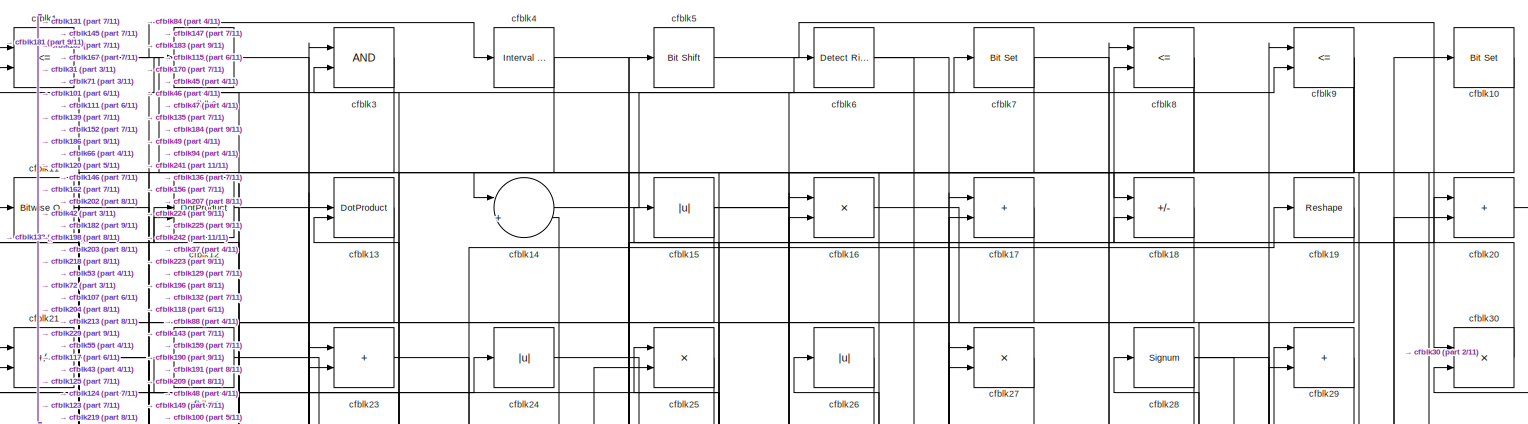
[diagram: root canvas - part 1/11, full width, top band]
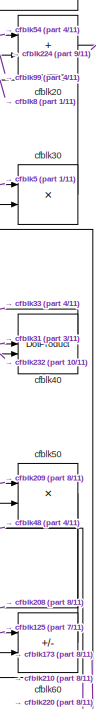
[diagram: root canvas - part 2/11, top right region]
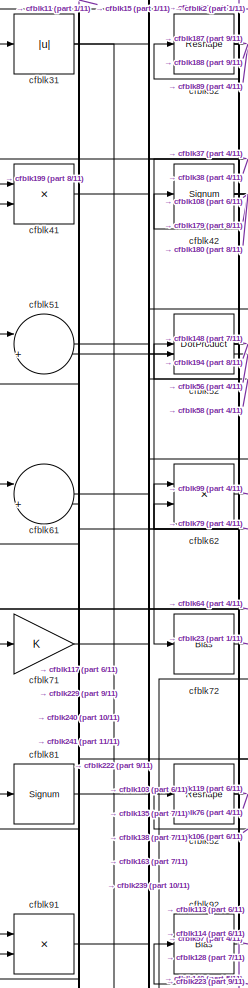
[diagram: root canvas - part 3/11, top left region]
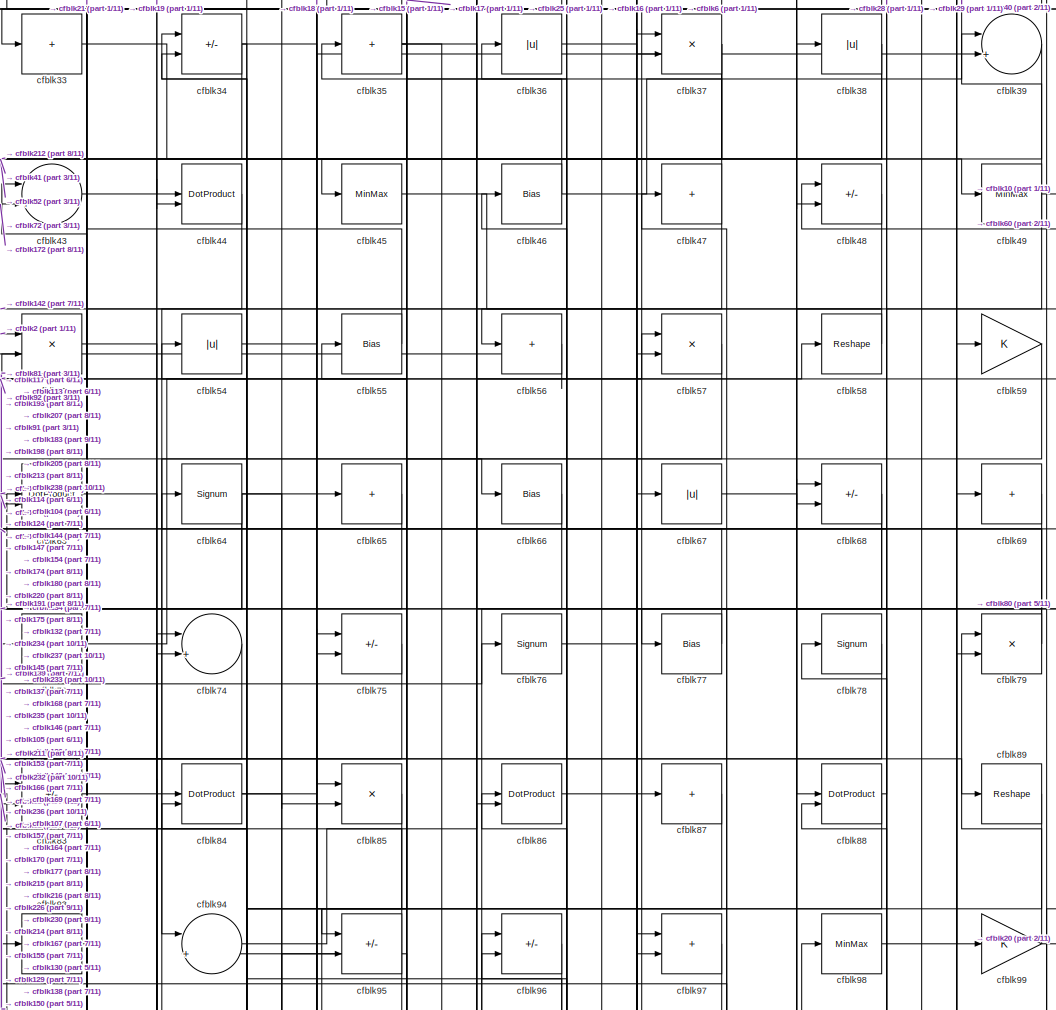
[diagram: root canvas - part 4/11, top center region]
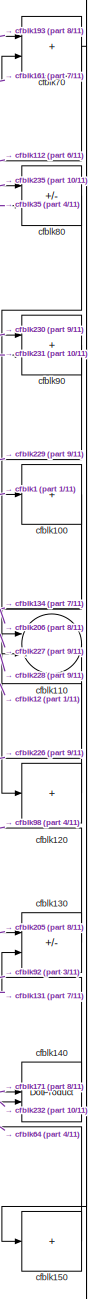
[diagram: root canvas - part 5/11, middle right region]
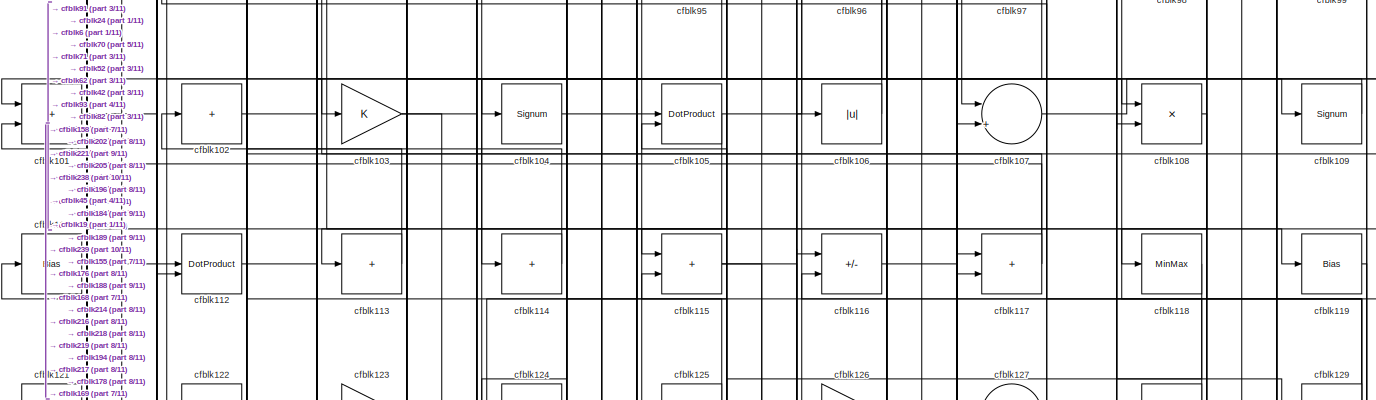
[diagram: root canvas - part 6/11, full width, middle band]
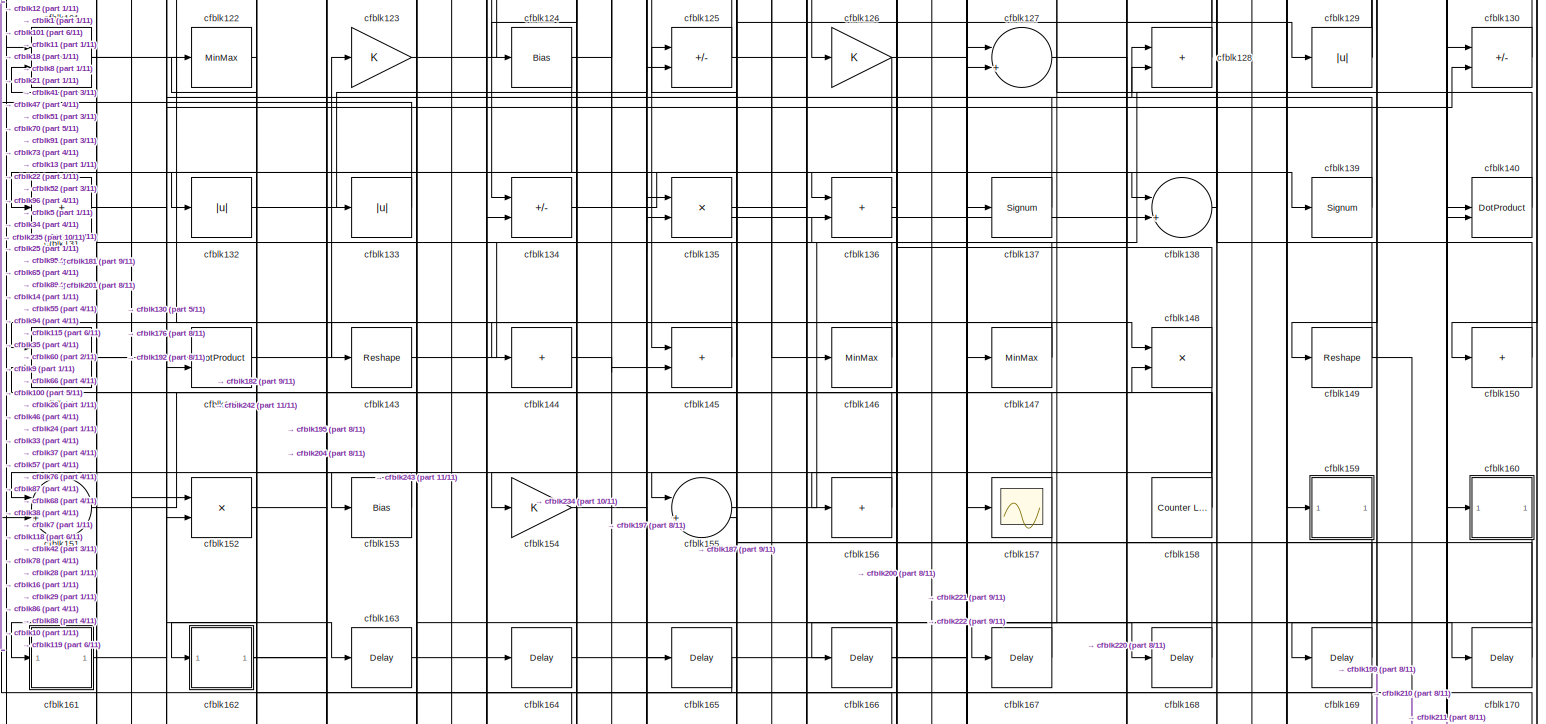
[diagram: root canvas - part 7/11, full width, middle band]
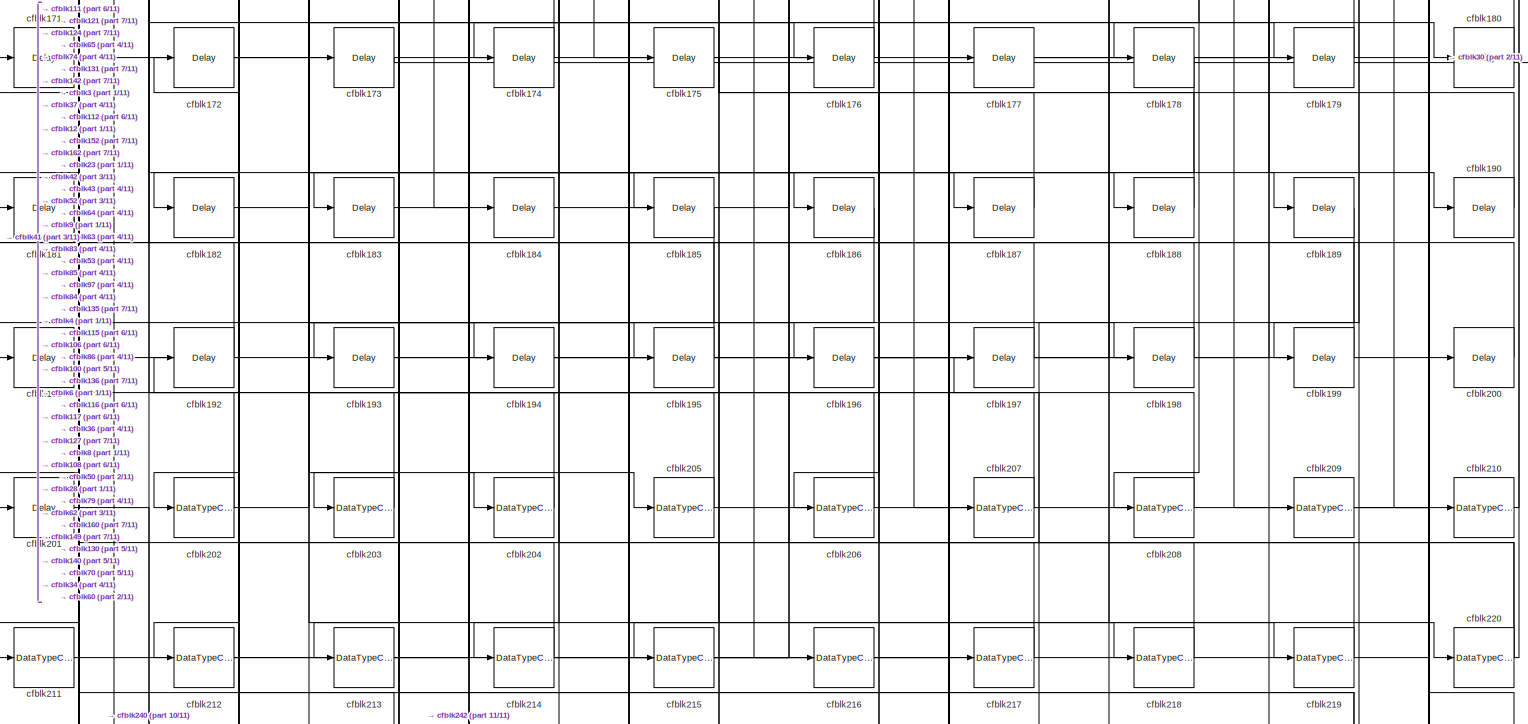
[diagram: root canvas - part 8/11, full width, bottom band]
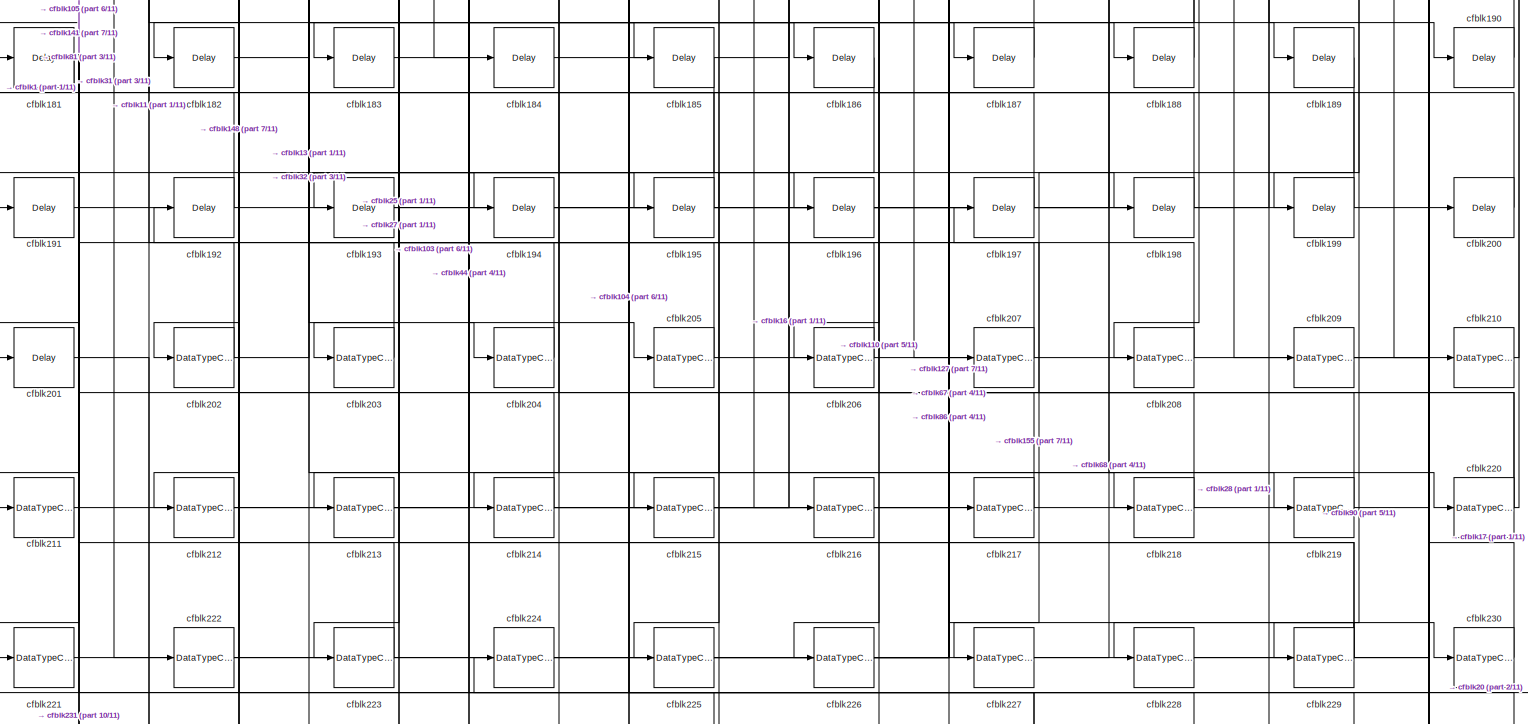
[diagram: root canvas - part 9/11, full width, bottom band]
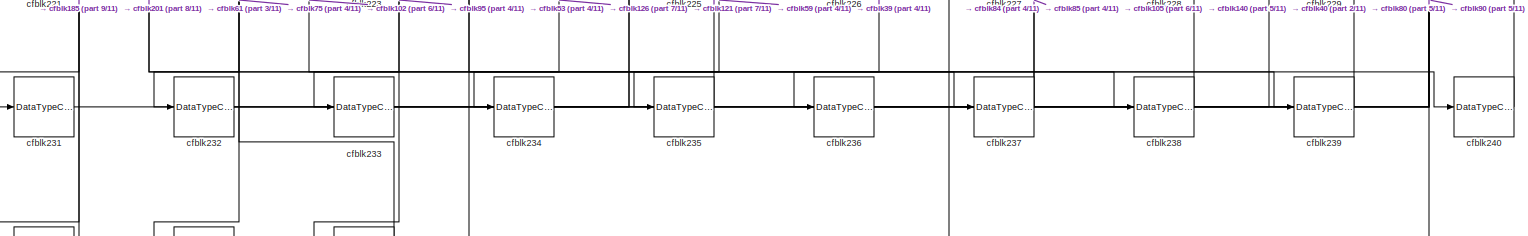
[diagram: root canvas - part 10/11, full width, bottom band]
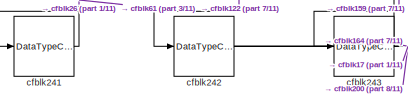
[diagram: root canvas - part 11/11, bottom left region]
MODEL slx_226586315a16
KIND model
CONFIG AbsTol = auto
CONFIG EnableMultiTasking = off
CONFIG FixedStep = auto
CONFIG MaxStep = auto
CONFIG MinStep = auto
CONFIG RelTol = 1e-3
CONFIG SampleTimeConstraint = Unconstrained
CONFIG SolverName = VariableStepAuto
CONFIG StartTime = 0.0
CONFIG StopTime = 10.0
BLOCK [RelationalOperator] cfblk1
  InputSameDT = off
  Operator = <=
  OutDataTypeStr = boolean
BLOCK [Reference] cfblk10  REF=simulink/Logic and Bit
Operations/Bit Set
  LibrarySourceBlock = hdlsllib/Logic and Bit\nOperations/Bit Set
  SourceBlock = simulink/Logic and Bit\nOperations/Bit Set
  SourceType = Bit Set
BLOCK [Sum] cfblk100
  IconShape = rectangular
  Inputs = +
BLOCK [Sum] cfblk101
  IconShape = rectangular
BLOCK [Sum] cfblk102
  IconShape = rectangular
  Inputs = +
BLOCK [Gain] cfblk103
BLOCK [Signum] cfblk104
BLOCK [DotProduct] cfblk105
  OutDataTypeStr = Inherit: Inherit via internal rule
BLOCK [Abs] cfblk106
  SaturateOnIntegerOverflow = off
BLOCK [Sum] cfblk107
  Inputs = |++
BLOCK [Product] cfblk108
  Inputs = */
  RndMeth = Zero
  SaturateOnIntegerOverflow = on
BLOCK [Signum] cfblk109
BLOCK [Reference] cfblk11  REF=simulink/Logic and Bit
Operations/Bitwise
Operator
  LibrarySourceBlock = hdlsllib/Logic and Bit\nOperations/Bitwise\nOperator
  SourceBlock = simulink/Logic and Bit\nOperations/Bitwise\nOperator
  SourceType = Bitwise Operator
BLOCK [Sum] cfblk110
  Inputs = |++
BLOCK [Bias] cfblk111
  Bias = 0.0
  SaturateOnIntegerOverflow = off
BLOCK [DotProduct] cfblk112
  OutDataTypeStr = Inherit: Inherit via internal rule
BLOCK [Sum] cfblk113
  IconShape = rectangular
  Inputs = +
BLOCK [Sum] cfblk114
  IconShape = rectangular
  Inputs = +
BLOCK [Sum] cfblk115
  IconShape = rectangular
BLOCK [Sum] cfblk116
  IconShape = rectangular
  Inputs = +-
BLOCK [Sum] cfblk117
  IconShape = rectangular
BLOCK [MinMax] cfblk118
BLOCK [Bias] cfblk119
  Bias = 0.0
  SaturateOnIntegerOverflow = off
BLOCK [DotProduct] cfblk12
  OutDataTypeStr = Inherit: Inherit via internal rule
BLOCK [Sum] cfblk120
  IconShape = rectangular
  Inputs = +
BLOCK [Product] cfblk121
  Inputs = */
  RndMeth = Zero
  SaturateOnIntegerOverflow = on
BLOCK [MinMax] cfblk122
BLOCK [Gain] cfblk123
BLOCK [Bias] cfblk124
  Bias = 0.0
  SaturateOnIntegerOverflow = off
BLOCK [Sum] cfblk125
  IconShape = rectangular
  Inputs = +-
BLOCK [Gain] cfblk126
BLOCK [Sum] cfblk127
  Inputs = |++
BLOCK [Sum] cfblk128
  IconShape = rectangular
BLOCK [Abs] cfblk129
  SaturateOnIntegerOverflow = off
BLOCK [DotProduct] cfblk13
  OutDataTypeStr = Inherit: Inherit via internal rule
BLOCK [Sum] cfblk130
  IconShape = rectangular
  Inputs = +-
BLOCK [Sum] cfblk131
  IconShape = rectangular
  Inputs = +
BLOCK [Abs] cfblk132
  SaturateOnIntegerOverflow = off
BLOCK [Abs] cfblk133
  SaturateOnIntegerOverflow = off
BLOCK [Sum] cfblk134
  IconShape = rectangular
  Inputs = +-
BLOCK [Product] cfblk135
  Inputs = */
  RndMeth = Zero
  SaturateOnIntegerOverflow = on
BLOCK [Sum] cfblk136
  IconShape = rectangular
BLOCK [Signum] cfblk137
BLOCK [Sum] cfblk138
  Inputs = |++
BLOCK [Signum] cfblk139
BLOCK [Sum] cfblk14
  Inputs = |++
BLOCK [DotProduct] cfblk140
  OutDataTypeStr = Inherit: Inherit via internal rule
BLOCK [Sum] cfblk141
  IconShape = rectangular
BLOCK [DotProduct] cfblk142
  OutDataTypeStr = Inherit: Inherit via internal rule
BLOCK [Reshape] cfblk143
BLOCK [Sum] cfblk144
  IconShape = rectangular
  Inputs = +
BLOCK [Sum] cfblk145
  IconShape = rectangular
BLOCK [MinMax] cfblk146
BLOCK [MinMax] cfblk147
BLOCK [Product] cfblk148
  Inputs = */
  RndMeth = Zero
  SaturateOnIntegerOverflow = on
BLOCK [Reshape] cfblk149
BLOCK [Abs] cfblk15
  SaturateOnIntegerOverflow = off
BLOCK [Sum] cfblk150
  IconShape = rectangular
  Inputs = +
BLOCK [Sum] cfblk151
  Inputs = |++
BLOCK [Product] cfblk152
  Inputs = */
  RndMeth = Zero
  SaturateOnIntegerOverflow = on
BLOCK [Bias] cfblk153
  Bias = 0.0
  SaturateOnIntegerOverflow = off
BLOCK [Gain] cfblk154
BLOCK [Sum] cfblk155
  Inputs = |++
BLOCK [Sum] cfblk156
  IconShape = rectangular
  Inputs = +
BLOCK [Scope] cfblk157
  Floating = off
  NumInputPorts = 1
  ScopeSpecificationString = Simulink.scopes.TimeScopeBlockCfg('CurrentConfiguration', extmgr.ConfigurationSet(extmgr.Configuration('Core','General UI',true),extmgr.Configuration('Core','Source UI',true),extmgr.Configuration('Sources','WiredSimulink',true,'DataLoggingVariableName','ScopeData2','DataLoggingSaveFormat','Array','DataLoggingLimitDataPoints',true,'DataLoggingDecimation','1'),extmgr.Configuration('Visuals','Time Do...<+868ch>
BLOCK [Reference] cfblk158  REF=hdlsllib/Sources/Counter
Limited
  SourceBlock = hdlsllib/Sources/Counter\nLimited
  SourceType = Counter Limited
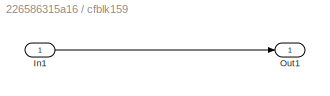
BLOCK [SubSystem] cfblk159
  LibrarySourceBlock = hdlsllib/Ports &\nSubsystems/Subsystem
BLOCK [Inport] cfblk159/In1
BLOCK [Outport] cfblk159/Out1
BLOCK [Product] cfblk16
  Inputs = */
  RndMeth = Zero
  SaturateOnIntegerOverflow = on
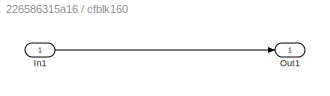
BLOCK [SubSystem] cfblk160
  LibrarySourceBlock = hdlsllib/Ports &\nSubsystems/Subsystem
BLOCK [Inport] cfblk160/In1
BLOCK [Outport] cfblk160/Out1
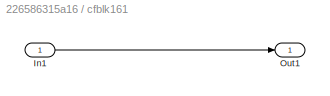
BLOCK [SubSystem] cfblk161
  LibrarySourceBlock = hdlsllib/Ports &\nSubsystems/Subsystem
BLOCK [Inport] cfblk161/In1
BLOCK [Outport] cfblk161/Out1
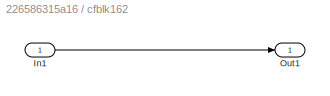
BLOCK [SubSystem] cfblk162
  LibrarySourceBlock = hdlsllib/Ports &\nSubsystems/Subsystem
BLOCK [Inport] cfblk162/In1
BLOCK [Outport] cfblk162/Out1
BLOCK [Delay] cfblk163
  InputPortMap = u0
  SampleTime = 1
BLOCK [Delay] cfblk164
  InputPortMap = u0
  SampleTime = 1
BLOCK [Delay] cfblk165
  InputPortMap = u0
  SampleTime = 1
BLOCK [Delay] cfblk166
  InputPortMap = u0
  SampleTime = 1
BLOCK [Delay] cfblk167
  InputPortMap = u0
  SampleTime = 1
BLOCK [Delay] cfblk168
  InputPortMap = u0
  SampleTime = 1
BLOCK [Delay] cfblk169
  InputPortMap = u0
  SampleTime = 1
BLOCK [Sum] cfblk17
  IconShape = rectangular
BLOCK [Delay] cfblk170
  InputPortMap = u0
  SampleTime = 1
BLOCK [Delay] cfblk171
  InputPortMap = u0
  SampleTime = 1
BLOCK [Delay] cfblk172
  InputPortMap = u0
  SampleTime = 1
BLOCK [Delay] cfblk173
  InputPortMap = u0
  SampleTime = 1
BLOCK [Delay] cfblk174
  InputPortMap = u0
  SampleTime = 1
BLOCK [Delay] cfblk175
  InputPortMap = u0
  SampleTime = 1
BLOCK [Delay] cfblk176
  InputPortMap = u0
  SampleTime = 1
BLOCK [Delay] cfblk177
  InputPortMap = u0
  SampleTime = 1
BLOCK [Delay] cfblk178
  InputPortMap = u0
  SampleTime = 1
BLOCK [Delay] cfblk179
  InputPortMap = u0
  SampleTime = 1
BLOCK [Sum] cfblk18
  IconShape = rectangular
  Inputs = +-
BLOCK [Delay] cfblk180
  InputPortMap = u0
  SampleTime = 1
BLOCK [Delay] cfblk181
  InputPortMap = u0
  SampleTime = 1
BLOCK [Delay] cfblk182
  InputPortMap = u0
  SampleTime = 1
BLOCK [Delay] cfblk183
  InputPortMap = u0
  SampleTime = 1
BLOCK [Delay] cfblk184
  InputPortMap = u0
  SampleTime = 1
BLOCK [Delay] cfblk185
  InputPortMap = u0
  SampleTime = 1
BLOCK [Delay] cfblk186
  InputPortMap = u0
  SampleTime = 1
BLOCK [Delay] cfblk187
  InputPortMap = u0
  SampleTime = 1
BLOCK [Delay] cfblk188
  InputPortMap = u0
  SampleTime = 1
BLOCK [Delay] cfblk189
  InputPortMap = u0
  SampleTime = 1
BLOCK [Reshape] cfblk19
BLOCK [Delay] cfblk190
  InputPortMap = u0
  SampleTime = 1
BLOCK [Delay] cfblk191
  InputPortMap = u0
  SampleTime = 1
BLOCK [Delay] cfblk192
  InputPortMap = u0
  SampleTime = 1
BLOCK [Delay] cfblk193
  InputPortMap = u0
  SampleTime = 1
BLOCK [Delay] cfblk194
  InputPortMap = u0
  SampleTime = 1
BLOCK [Delay] cfblk195
  InputPortMap = u0
  SampleTime = 1
BLOCK [Delay] cfblk196
  InputPortMap = u0
  SampleTime = 1
BLOCK [Delay] cfblk197
  InputPortMap = u0
  SampleTime = 1
BLOCK [Delay] cfblk198
  InputPortMap = u0
  SampleTime = 1
BLOCK [Delay] cfblk199
  InputPortMap = u0
  SampleTime = 1
BLOCK [Reference] cfblk2  REF=hdlsllib/Logic and Bit
Operations/Bit Slice
  SourceBlock = hdlsllib/Logic and Bit\nOperations/Bit Slice
  SourceType = Bit Slice
BLOCK [Sum] cfblk20
  IconShape = rectangular
BLOCK [Delay] cfblk200
  InputPortMap = u0
  SampleTime = 1
BLOCK [Delay] cfblk201
  InputPortMap = u0
  SampleTime = 1
BLOCK [DataTypeConversion] cfblk202
  RndMeth = Floor
  SaturateOnIntegerOverflow = off
BLOCK [DataTypeConversion] cfblk203
  OutDataTypeStr = uint8
  RndMeth = Floor
  SaturateOnIntegerOverflow = off
BLOCK [DataTypeConversion] cfblk204
  OutDataTypeStr = uint8
  RndMeth = Floor
  SaturateOnIntegerOverflow = off
BLOCK [DataTypeConversion] cfblk205
  RndMeth = Floor
  SaturateOnIntegerOverflow = off
BLOCK [DataTypeConversion] cfblk206
  OutDataTypeStr = uint8
  RndMeth = Floor
  SaturateOnIntegerOverflow = off
BLOCK [DataTypeConversion] cfblk207
  OutDataTypeStr = uint8
  RndMeth = Floor
  SaturateOnIntegerOverflow = off
BLOCK [DataTypeConversion] cfblk208
  OutDataTypeStr = uint8
  RndMeth = Floor
  SaturateOnIntegerOverflow = off
BLOCK [DataTypeConversion] cfblk209
  OutDataTypeStr = uint8
  RndMeth = Floor
  SaturateOnIntegerOverflow = off
BLOCK [Sum] cfblk21
  IconShape = rectangular
  Inputs = +-
BLOCK [DataTypeConversion] cfblk210
  OutDataTypeStr = uint8
  RndMeth = Floor
  SaturateOnIntegerOverflow = off
BLOCK [DataTypeConversion] cfblk211
  OutDataTypeStr = uint8
  RndMeth = Floor
  SaturateOnIntegerOverflow = off
BLOCK [DataTypeConversion] cfblk212
  OutDataTypeStr = uint8
  RndMeth = Floor
  SaturateOnIntegerOverflow = off
BLOCK [DataTypeConversion] cfblk213
  OutDataTypeStr = uint8
  RndMeth = Floor
  SaturateOnIntegerOverflow = off
BLOCK [DataTypeConversion] cfblk214
  RndMeth = Floor
  SaturateOnIntegerOverflow = off
BLOCK [DataTypeConversion] cfblk215
  OutDataTypeStr = uint8
  RndMeth = Floor
  SaturateOnIntegerOverflow = off
BLOCK [DataTypeConversion] cfblk216
  OutDataTypeStr = uint8
  RndMeth = Floor
  SaturateOnIntegerOverflow = off
BLOCK [DataTypeConversion] cfblk217
  OutDataTypeStr = uint8
  RndMeth = Floor
  SaturateOnIntegerOverflow = off
BLOCK [DataTypeConversion] cfblk218
  OutDataTypeStr = uint8
  RndMeth = Floor
  SaturateOnIntegerOverflow = off
BLOCK [DataTypeConversion] cfblk219
  OutDataTypeStr = uint8
  RndMeth = Floor
  SaturateOnIntegerOverflow = off
BLOCK [Bias] cfblk22
  Bias = 0.0
  SaturateOnIntegerOverflow = off
BLOCK [DataTypeConversion] cfblk220
  RndMeth = Floor
  SaturateOnIntegerOverflow = off
BLOCK [DataTypeConversion] cfblk221
  OutDataTypeStr = uint8
  RndMeth = Floor
  SaturateOnIntegerOverflow = off
BLOCK [DataTypeConversion] cfblk222
  OutDataTypeStr = uint8
  RndMeth = Floor
  SaturateOnIntegerOverflow = off
BLOCK [DataTypeConversion] cfblk223
  OutDataTypeStr = uint8
  RndMeth = Floor
  SaturateOnIntegerOverflow = off
BLOCK [DataTypeConversion] cfblk224
  OutDataTypeStr = uint8
  RndMeth = Floor
  SaturateOnIntegerOverflow = off
BLOCK [DataTypeConversion] cfblk225
  OutDataTypeStr = uint8
  RndMeth = Floor
  SaturateOnIntegerOverflow = off
BLOCK [DataTypeConversion] cfblk226
  RndMeth = Floor
  SaturateOnIntegerOverflow = off
BLOCK [DataTypeConversion] cfblk227
  OutDataTypeStr = uint8
  RndMeth = Floor
  SaturateOnIntegerOverflow = off
BLOCK [DataTypeConversion] cfblk228
  OutDataTypeStr = uint8
  RndMeth = Floor
  SaturateOnIntegerOverflow = off
BLOCK [DataTypeConversion] cfblk229
  RndMeth = Floor
  SaturateOnIntegerOverflow = off
BLOCK [Sum] cfblk23
  IconShape = rectangular
BLOCK [DataTypeConversion] cfblk230
  OutDataTypeStr = uint8
  RndMeth = Floor
  SaturateOnIntegerOverflow = off
BLOCK [DataTypeConversion] cfblk231
  OutDataTypeStr = uint8
  RndMeth = Floor
  SaturateOnIntegerOverflow = off
BLOCK [DataTypeConversion] cfblk232
  RndMeth = Floor
  SaturateOnIntegerOverflow = off
BLOCK [DataTypeConversion] cfblk233
  OutDataTypeStr = uint8
  RndMeth = Floor
  SaturateOnIntegerOverflow = off
BLOCK [DataTypeConversion] cfblk234
  OutDataTypeStr = uint8
  RndMeth = Floor
  SaturateOnIntegerOverflow = off
BLOCK [DataTypeConversion] cfblk235
  RndMeth = Floor
  SaturateOnIntegerOverflow = off
BLOCK [DataTypeConversion] cfblk236
  OutDataTypeStr = uint8
  RndMeth = Floor
  SaturateOnIntegerOverflow = off
BLOCK [DataTypeConversion] cfblk237
  RndMeth = Floor
  SaturateOnIntegerOverflow = off
BLOCK [DataTypeConversion] cfblk238
  OutDataTypeStr = uint8
  RndMeth = Floor
  SaturateOnIntegerOverflow = off
BLOCK [DataTypeConversion] cfblk239
  OutDataTypeStr = uint8
  RndMeth = Floor
  SaturateOnIntegerOverflow = off
BLOCK [Abs] cfblk24
  SaturateOnIntegerOverflow = off
BLOCK [DataTypeConversion] cfblk240
  OutDataTypeStr = uint8
  RndMeth = Floor
  SaturateOnIntegerOverflow = off
BLOCK [DataTypeConversion] cfblk241
  OutDataTypeStr = uint8
  RndMeth = Floor
  SaturateOnIntegerOverflow = off
BLOCK [DataTypeConversion] cfblk242
  RndMeth = Floor
  SaturateOnIntegerOverflow = off
BLOCK [DataTypeConversion] cfblk243
  OutDataTypeStr = uint8
  RndMeth = Floor
  SaturateOnIntegerOverflow = off
BLOCK [Product] cfblk25
  Inputs = */
  RndMeth = Zero
  SaturateOnIntegerOverflow = on
BLOCK [Abs] cfblk26
  SaturateOnIntegerOverflow = off
BLOCK [Product] cfblk27
  Inputs = */
  RndMeth = Zero
  SaturateOnIntegerOverflow = on
BLOCK [Signum] cfblk28
BLOCK [Sum] cfblk29
  IconShape = rectangular
BLOCK [Logic] cfblk3
  AllPortsSameDT = off
  OutDataTypeStr = boolean
BLOCK [Product] cfblk30
  Inputs = */
  RndMeth = Zero
  SaturateOnIntegerOverflow = on
BLOCK [Abs] cfblk31
  SaturateOnIntegerOverflow = off
BLOCK [Reshape] cfblk32
BLOCK [Sum] cfblk33
  IconShape = rectangular
  Inputs = +
BLOCK [Sum] cfblk34
  IconShape = rectangular
  Inputs = +-
BLOCK [Sum] cfblk35
  IconShape = rectangular
  Inputs = +
BLOCK [Abs] cfblk36
  SaturateOnIntegerOverflow = off
BLOCK [Product] cfblk37
  Inputs = */
  RndMeth = Zero
  SaturateOnIntegerOverflow = on
BLOCK [Abs] cfblk38
  SaturateOnIntegerOverflow = off
BLOCK [Sum] cfblk39
  Inputs = |++
BLOCK [Reference] cfblk4  REF=hdlsllib/Logic and Bit
Operations/Interval Test
  SourceBlock = hdlsllib/Logic and Bit\nOperations/Interval Test
  SourceType = Interval Test
BLOCK [DotProduct] cfblk40
  OutDataTypeStr = Inherit: Inherit via internal rule
BLOCK [Product] cfblk41
  Inputs = */
  RndMeth = Zero
  SaturateOnIntegerOverflow = on
BLOCK [Signum] cfblk42
BLOCK [Sum] cfblk43
  Inputs = |++
BLOCK [DotProduct] cfblk44
  OutDataTypeStr = Inherit: Inherit via internal rule
BLOCK [MinMax] cfblk45
BLOCK [Bias] cfblk46
  Bias = 0.0
  SaturateOnIntegerOverflow = off
BLOCK [Sum] cfblk47
  IconShape = rectangular
  Inputs = +
BLOCK [Sum] cfblk48
  IconShape = rectangular
  Inputs = +-
BLOCK [MinMax] cfblk49
BLOCK [Reference] cfblk5  REF=hdlsllib/Logic and Bit
Operations/Bit Shift
  SourceBlock = hdlsllib/Logic and Bit\nOperations/Bit Shift
  SourceType = Bit Shift
BLOCK [Product] cfblk50
  Inputs = */
  RndMeth = Zero
  SaturateOnIntegerOverflow = on
BLOCK [Sum] cfblk51
  Inputs = |++
BLOCK [DotProduct] cfblk52
  OutDataTypeStr = Inherit: Inherit via internal rule
BLOCK [Product] cfblk53
  Inputs = */
  RndMeth = Zero
  SaturateOnIntegerOverflow = on
BLOCK [Abs] cfblk54
  SaturateOnIntegerOverflow = off
BLOCK [Bias] cfblk55
  Bias = 0.0
  SaturateOnIntegerOverflow = off
BLOCK [Sum] cfblk56
  IconShape = rectangular
  Inputs = +
BLOCK [Product] cfblk57
  Inputs = */
  RndMeth = Zero
  SaturateOnIntegerOverflow = on
BLOCK [Reshape] cfblk58
BLOCK [Gain] cfblk59
BLOCK [Reference] cfblk6  REF=hdlsllib/Logic and Bit
Operations/Detect Rise
Positive
  SourceBlock = hdlsllib/Logic and Bit\nOperations/Detect Rise\nPositive
  SourceType = Detect Rise Positive
BLOCK [Sum] cfblk60
  IconShape = rectangular
  Inputs = +-
BLOCK [Sum] cfblk61
  Inputs = |++
BLOCK [Product] cfblk62
  Inputs = */
  RndMeth = Zero
  SaturateOnIntegerOverflow = on
BLOCK [DotProduct] cfblk63
  OutDataTypeStr = Inherit: Inherit via internal rule
BLOCK [Signum] cfblk64
BLOCK [Sum] cfblk65
  IconShape = rectangular
  Inputs = +
BLOCK [Bias] cfblk66
  Bias = 0.0
  SaturateOnIntegerOverflow = off
BLOCK [Abs] cfblk67
  SaturateOnIntegerOverflow = off
BLOCK [Sum] cfblk68
  IconShape = rectangular
  Inputs = +-
BLOCK [Sum] cfblk69
  IconShape = rectangular
  Inputs = +
BLOCK [Reference] cfblk7  REF=simulink/Logic and Bit
Operations/Bit Set
  LibrarySourceBlock = hdlsllib/Logic and Bit\nOperations/Bit Set
  SourceBlock = simulink/Logic and Bit\nOperations/Bit Set
  SourceType = Bit Set
BLOCK [Sum] cfblk70
  IconShape = rectangular
BLOCK [Gain] cfblk71
BLOCK [Bias] cfblk72
  Bias = 0.0
  SaturateOnIntegerOverflow = off
BLOCK [Sum] cfblk73
  IconShape = rectangular
  Inputs = +
BLOCK [Sum] cfblk74
  Inputs = |++
BLOCK [Sum] cfblk75
  IconShape = rectangular
  Inputs = +-
BLOCK [Signum] cfblk76
BLOCK [Bias] cfblk77
  Bias = 0.0
  SaturateOnIntegerOverflow = off
BLOCK [Signum] cfblk78
BLOCK [Product] cfblk79
  Inputs = */
  RndMeth = Zero
  SaturateOnIntegerOverflow = on
BLOCK [RelationalOperator] cfblk8
  InputSameDT = off
  Operator = <=
  OutDataTypeStr = boolean
BLOCK [Sum] cfblk80
  IconShape = rectangular
  Inputs = +-
BLOCK [Signum] cfblk81
BLOCK [Reshape] cfblk82
BLOCK [Sum] cfblk83
  IconShape = rectangular
  Inputs = +-
BLOCK [DotProduct] cfblk84
  OutDataTypeStr = Inherit: Inherit via internal rule
BLOCK [Product] cfblk85
  Inputs = */
  RndMeth = Zero
  SaturateOnIntegerOverflow = on
BLOCK [DotProduct] cfblk86
  OutDataTypeStr = Inherit: Inherit via internal rule
BLOCK [Sum] cfblk87
  IconShape = rectangular
  Inputs = +
BLOCK [DotProduct] cfblk88
  OutDataTypeStr = Inherit: Inherit via internal rule
BLOCK [Reshape] cfblk89
BLOCK [RelationalOperator] cfblk9
  InputSameDT = off
  Operator = <=
  OutDataTypeStr = boolean
BLOCK [Sum] cfblk90
  IconShape = rectangular
BLOCK [Product] cfblk91
  Inputs = */
  RndMeth = Zero
  SaturateOnIntegerOverflow = on
BLOCK [Bias] cfblk92
  Bias = 0.0
  SaturateOnIntegerOverflow = off
BLOCK [Sum] cfblk93
  IconShape = rectangular
  Inputs = +
BLOCK [Sum] cfblk94
  Inputs = |++
BLOCK [Sum] cfblk95
  IconShape = rectangular
  Inputs = +-
BLOCK [Sum] cfblk96
  IconShape = rectangular
  Inputs = +-
BLOCK [Sum] cfblk97
  IconShape = rectangular
BLOCK [MinMax] cfblk98
BLOCK [Gain] cfblk99
NET cfblk100:1 -> cfblk134:1, cfblk206:1
LINE cfblk101:1 -> cfblk6:1
LINE cfblk102:1 -> cfblk237:1
NET cfblk103:1 -> cfblk184:1, cfblk185:1
LINE cfblk104:1 -> cfblk189:1
NET cfblk105:1 -> cfblk221:1, cfblk96:1
LINE cfblk106:1 -> cfblk82:1
LINE cfblk107:1 -> cfblk109:1
LINE cfblk108:1 -> cfblk178:1
LINE cfblk109:1 -> cfblk101:1
LINE cfblk10:1 -> cfblk149:1
LINE cfblk110:1 -> cfblk226:1
LINE cfblk111:1 -> cfblk24:1
LINE cfblk112:1 -> cfblk196:1
LINE cfblk113:1 -> cfblk52:1
LINE cfblk114:1 -> cfblk62:1
NET cfblk115:1 -> cfblk168:1, cfblk216:1
LINE cfblk116:1 -> cfblk217:1
NET cfblk117:1 -> cfblk91:1, cfblk93:1
LINE cfblk118:1 -> cfblk155:1
LINE cfblk119:1 -> cfblk169:1
NET cfblk11:1 -> cfblk186:1, cfblk71:1
LINE cfblk120:1 -> cfblk12:2
NET cfblk121:1 -> cfblk143:1, cfblk152:1
LINE cfblk122:1 -> cfblk242:1
LINE cfblk123:1 -> cfblk5:1
NET cfblk124:1 -> cfblk201:1, cfblk25:2
NET cfblk125:1 -> cfblk14:2, cfblk60:1
NET cfblk126:1 -> cfblk234:1, cfblk87:1
LINE cfblk127:1 -> cfblk220:1
LINE cfblk128:1 -> cfblk42:1
NET cfblk129:1 -> cfblk47:1, cfblk86:1, cfblk88:2
LINE cfblk12:1 -> cfblk218:1
LINE cfblk130:1 -> cfblk98:1
NET cfblk131:1 -> cfblk130:2, cfblk176:1
LINE cfblk132:1 -> cfblk65:1
LINE cfblk133:1 -> cfblk12:1
NET cfblk134:1 -> cfblk136:1, cfblk95:2
LINE cfblk135:1 -> cfblk9:2
LINE cfblk136:1 -> cfblk26:1
LINE cfblk137:1 -> cfblk55:1
LINE cfblk138:1 -> cfblk78:1
LINE cfblk139:1 -> cfblk73:1
LINE cfblk13:1 -> cfblk162:1
LINE cfblk140:1 -> cfblk92:1
NET cfblk141:1 -> cfblk128:2, cfblk148:2, cfblk181:1
LINE cfblk142:1 -> cfblk123:1
LINE cfblk143:1 -> cfblk29:2
LINE cfblk144:1 -> cfblk145:2
LINE cfblk145:1 -> cfblk11:1
LINE cfblk146:1 -> cfblk22:1
NET cfblk147:1 -> cfblk141:1, cfblk54:1
NET cfblk148:1 -> cfblk182:1, cfblk46:1
NET cfblk149:1 -> cfblk128:1, cfblk210:1
LINE cfblk14:1 -> cfblk7:1
LINE cfblk150:1 -> cfblk64:1
LINE cfblk151:1 -> cfblk137:1
LINE cfblk152:1 -> cfblk195:1
LINE cfblk153:1 -> cfblk151:1
LINE cfblk154:1 -> cfblk165:1
LINE cfblk155:1 -> cfblk38:1
LINE cfblk156:1 -> cfblk125:1
NET cfblk158:1 -> cfblk101:2, cfblk141:2
LINE cfblk159/In1:1 -> cfblk159/Out1:1
LINE cfblk159:1 -> cfblk243:1
NET cfblk15:1 -> cfblk18:1, cfblk31:1, cfblk49:1
LINE cfblk160/In1:1 -> cfblk160/Out1:1
LINE cfblk160:1 -> cfblk199:1
LINE cfblk161/In1:1 -> cfblk161/Out1:1
LINE cfblk161:1 -> cfblk70:2
LINE cfblk162/In1:1 -> cfblk162/Out1:1
NET cfblk162:1 -> cfblk133:1, cfblk204:1
LINE cfblk163:1 -> cfblk134:2
LINE cfblk164:1 -> cfblk57:2
LINE cfblk165:1 -> cfblk151:2
LINE cfblk166:1 -> cfblk37:1
LINE cfblk167:1 -> cfblk1:2
LINE cfblk168:1 -> cfblk94:2
LINE cfblk169:1 -> cfblk96:2
LINE cfblk16:1 -> cfblk159:1
LINE cfblk170:1 -> cfblk21:2
LINE cfblk171:1 -> cfblk140:1
LINE cfblk172:1 -> cfblk43:2
LINE cfblk173:1 -> cfblk30:2
LINE cfblk174:1 -> cfblk53:2
LINE cfblk175:1 -> cfblk215:1
LINE cfblk176:1 -> cfblk115:2
LINE cfblk177:1 -> cfblk79:2
LINE cfblk178:1 -> cfblk203:1
LINE cfblk179:1 -> cfblk62:2
LINE cfblk17:1 -> cfblk45:1
LINE cfblk180:1 -> cfblk34:2
LINE cfblk181:1 -> cfblk1:1
LINE cfblk182:1 -> cfblk13:1
LINE cfblk183:1 -> cfblk44:1
LINE cfblk184:1 -> cfblk16:2
LINE cfblk185:1 -> cfblk231:1
LINE cfblk186:1 -> cfblk225:1
LINE cfblk187:1 -> cfblk155:2
LINE cfblk188:1 -> cfblk105:2
LINE cfblk189:1 -> cfblk227:1
LINE cfblk18:1 -> cfblk131:1
LINE cfblk190:1 -> cfblk17:1
LINE cfblk191:1 -> cfblk9:1
LINE cfblk192:1 -> cfblk142:1
LINE cfblk193:1 -> cfblk70:1
LINE cfblk194:1 -> cfblk117:1
LINE cfblk195:1 -> cfblk121:2
LINE cfblk196:1 -> cfblk8:1
LINE cfblk197:1 -> cfblk135:1
LINE cfblk198:1 -> cfblk23:1
LINE cfblk199:1 -> cfblk41:1
LINE cfblk19:1 -> cfblk118:1
NET cfblk1:1 -> cfblk100:1, cfblk4:1
LINE cfblk200:1 -> cfblk136:2
LINE cfblk201:1 -> cfblk240:1
NET cfblk202:1 -> cfblk111:1, cfblk173:1
LINE cfblk203:1 -> cfblk3:1
LINE cfblk204:1 -> cfblk3:2
NET cfblk205:1 -> cfblk112:1, cfblk130:1
LINE cfblk206:1 -> cfblk63:1
LINE cfblk207:1 -> cfblk63:2
LINE cfblk208:1 -> cfblk192:1
LINE cfblk209:1 -> cfblk50:1
LINE cfblk20:1 -> cfblk224:1
LINE cfblk210:1 -> cfblk50:2
LINE cfblk211:1 -> cfblk160:1
LINE cfblk212:1 -> cfblk74:1
LINE cfblk213:1 -> cfblk74:2
NET cfblk214:1 -> cfblk106:1, cfblk171:1, cfblk86:2
LINE cfblk215:1 -> cfblk97:1
LINE cfblk216:1 -> cfblk97:2
LINE cfblk217:1 -> cfblk172:1
LINE cfblk218:1 -> cfblk116:1
LINE cfblk219:1 -> cfblk116:2
NET cfblk21:1 -> cfblk139:1, cfblk66:1
NET cfblk220:1 -> cfblk197:1, cfblk60:2, cfblk84:2
LINE cfblk221:1 -> cfblk127:1
LINE cfblk222:1 -> cfblk127:2
LINE cfblk223:1 -> cfblk32:1
LINE cfblk224:1 -> cfblk27:1
LINE cfblk225:1 -> cfblk27:2
NET cfblk226:1 -> cfblk67:1, cfblk68:1
LINE cfblk227:1 -> cfblk110:1
LINE cfblk228:1 -> cfblk110:2
NET cfblk229:1 -> cfblk13:2, cfblk228:1, cfblk81:1
LINE cfblk22:1 -> cfblk107:1
LINE cfblk230:1 -> cfblk90:1
LINE cfblk231:1 -> cfblk90:2
NET cfblk232:1 -> cfblk140:2, cfblk40:2
LINE cfblk233:1 -> cfblk75:1
LINE cfblk234:1 -> cfblk75:2
NET cfblk235:1 -> cfblk121:1, cfblk80:1
LINE cfblk236:1 -> cfblk59:1
NET cfblk237:1 -> cfblk84:1, cfblk85:1
LINE cfblk238:1 -> cfblk102:1
LINE cfblk239:1 -> cfblk105:1
LINE cfblk23:1 -> cfblk117:2
LINE cfblk240:1 -> cfblk61:1
LINE cfblk241:1 -> cfblk61:2
NET cfblk242:1 -> cfblk164:1, cfblk17:2, cfblk200:1
LINE cfblk243:1 -> cfblk122:1
LINE cfblk24:1 -> cfblk147:1
LINE cfblk25:1 -> cfblk183:1
LINE cfblk26:1 -> cfblk241:1
LINE cfblk27:1 -> cfblk223:1
NET cfblk28:1 -> cfblk132:1, cfblk190:1, cfblk209:1
LINE cfblk29:1 -> cfblk48:2
LINE cfblk2:1 -> cfblk53:1
LINE cfblk30:1 -> cfblk8:2
NET cfblk31:1 -> cfblk222:1, cfblk40:1
NET cfblk32:1 -> cfblk187:1, cfblk188:1, cfblk89:1
LINE cfblk33:1 -> cfblk157:1
NET cfblk34:1 -> cfblk124:1, cfblk138:2, cfblk44:2
NET cfblk35:1 -> cfblk146:1, cfblk80:2, cfblk95:1
LINE cfblk36:1 -> cfblk177:1
NET cfblk37:1 -> cfblk212:1, cfblk52:2, cfblk72:1
NET cfblk38:1 -> cfblk154:1, cfblk41:2
LINE cfblk39:1 -> cfblk236:1
LINE cfblk3:1 -> cfblk202:1
LINE cfblk40:1 -> cfblk33:1
LINE cfblk41:1 -> cfblk135:2
NET cfblk42:1 -> cfblk108:1, cfblk179:1, cfblk180:1, cfblk2:1
LINE cfblk43:1 -> cfblk19:1
LINE cfblk44:1 -> cfblk94:1
LINE cfblk45:1 -> cfblk107:2
NET cfblk46:1 -> cfblk25:1, cfblk29:1
NET cfblk47:1 -> cfblk142:2, cfblk15:1
LINE cfblk48:1 -> cfblk68:2
NET cfblk49:1 -> cfblk10:1, cfblk39:1, cfblk83:1
NET cfblk4:1 -> cfblk14:1, cfblk219:1
LINE cfblk50:1 -> cfblk208:1
LINE cfblk51:1 -> cfblk163:1
NET cfblk52:1 -> cfblk108:2, cfblk148:1, cfblk194:1
LINE cfblk53:1 -> cfblk238:1
LINE cfblk54:1 -> cfblk20:1
LINE cfblk55:1 -> cfblk21:1
LINE cfblk56:1 -> cfblk51:2
LINE cfblk57:1 -> cfblk114:1
LINE cfblk58:1 -> cfblk56:1
LINE cfblk59:1 -> cfblk235:1
LINE cfblk5:1 -> cfblk30:1
LINE cfblk60:1 -> cfblk48:1
LINE cfblk61:1 -> cfblk239:1
LINE cfblk62:1 -> cfblk99:1
LINE cfblk63:1 -> cfblk205:1
NET cfblk64:1 -> cfblk193:1, cfblk39:2, cfblk85:2, cfblk91:2
LINE cfblk65:1 -> cfblk191:1
LINE cfblk66:1 -> cfblk126:1
LINE cfblk67:1 -> cfblk88:1
NET cfblk68:1 -> cfblk166:1, cfblk167:1
LINE cfblk69:1 -> cfblk77:1
NET cfblk6:1 -> cfblk207:1, cfblk37:2
NET cfblk70:1 -> cfblk112:2, cfblk150:1
LINE cfblk71:1 -> cfblk103:1
LINE cfblk72:1 -> cfblk23:2
LINE cfblk73:1 -> cfblk35:1
LINE cfblk74:1 -> cfblk211:1
LINE cfblk75:1 -> cfblk232:1
LINE cfblk76:1 -> cfblk170:1
LINE cfblk77:1 -> cfblk36:1
LINE cfblk78:1 -> cfblk113:1
NET cfblk79:1 -> cfblk34:1, cfblk51:1
NET cfblk7:1 -> cfblk129:1, cfblk152:2
LINE cfblk80:1 -> cfblk120:1
LINE cfblk81:1 -> cfblk58:1
NET cfblk82:1 -> cfblk119:1, cfblk76:1
LINE cfblk83:1 -> cfblk198:1
NET cfblk84:1 -> cfblk175:1, cfblk18:2
LINE cfblk85:1 -> cfblk174:1
LINE cfblk86:1 -> cfblk230:1
LINE cfblk87:1 -> cfblk144:1
NET cfblk88:1 -> cfblk104:1, cfblk28:1
LINE cfblk89:1 -> cfblk145:1
NET cfblk8:1 -> cfblk115:1, cfblk161:1
LINE cfblk90:1 -> cfblk229:1
LINE cfblk91:1 -> cfblk138:1
LINE cfblk92:1 -> cfblk57:1
LINE cfblk93:1 -> cfblk43:1
LINE cfblk94:1 -> cfblk16:1
NET cfblk95:1 -> cfblk233:1, cfblk83:2
LINE cfblk96:1 -> cfblk153:1
LINE cfblk97:1 -> cfblk214:1
LINE cfblk98:1 -> cfblk69:1
NET cfblk99:1 -> cfblk20:2, cfblk79:1
NET cfblk9:1 -> cfblk125:2, cfblk156:1, cfblk213:1
note: NET lines group one-source signal fan-out (src -> all destinations, sorted); 1:1 wires keep LINE
